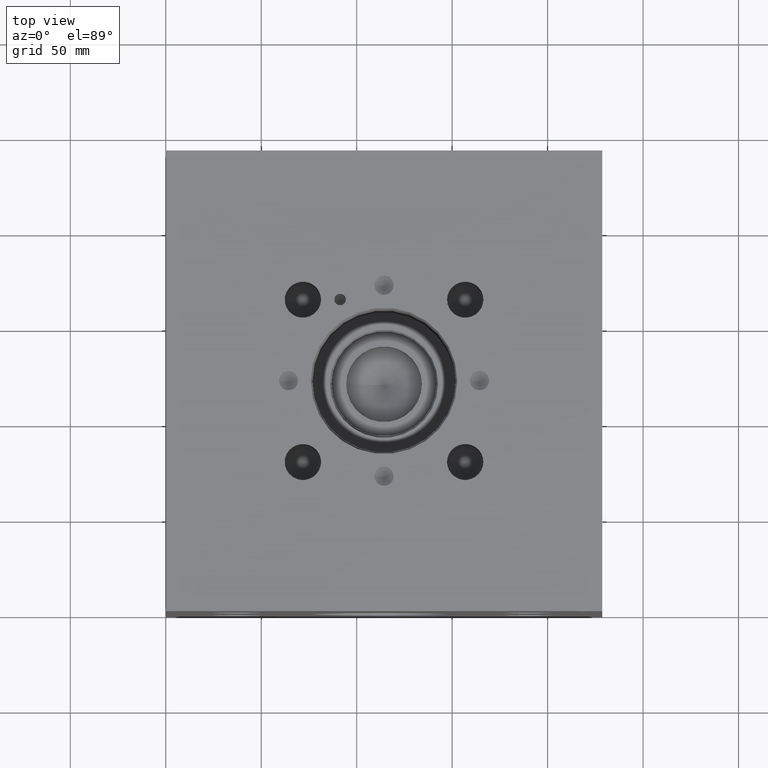
[diagram: clean part render]
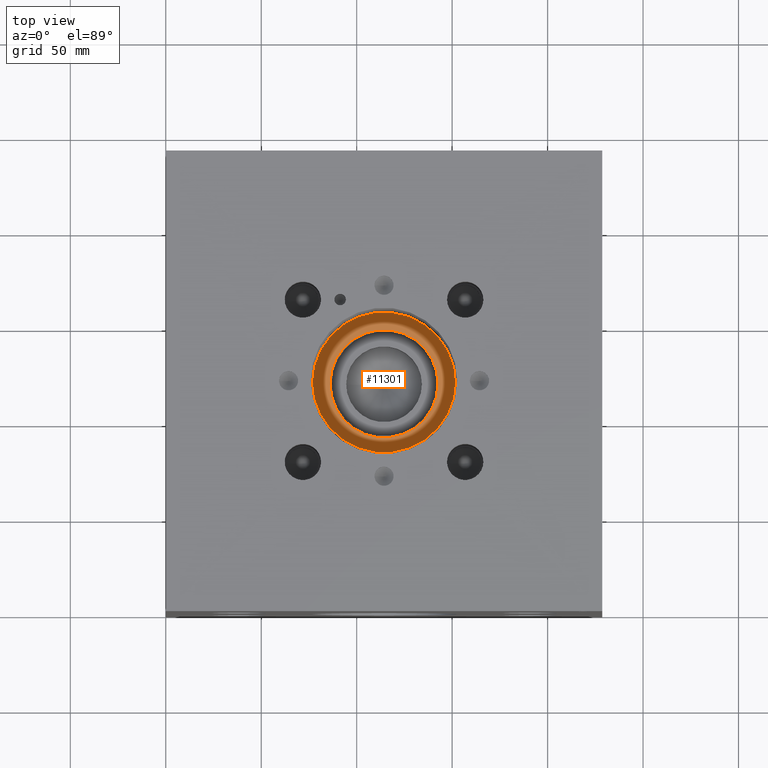
[diagram: same view with one face highlighted and labeled with its STEP entity id]
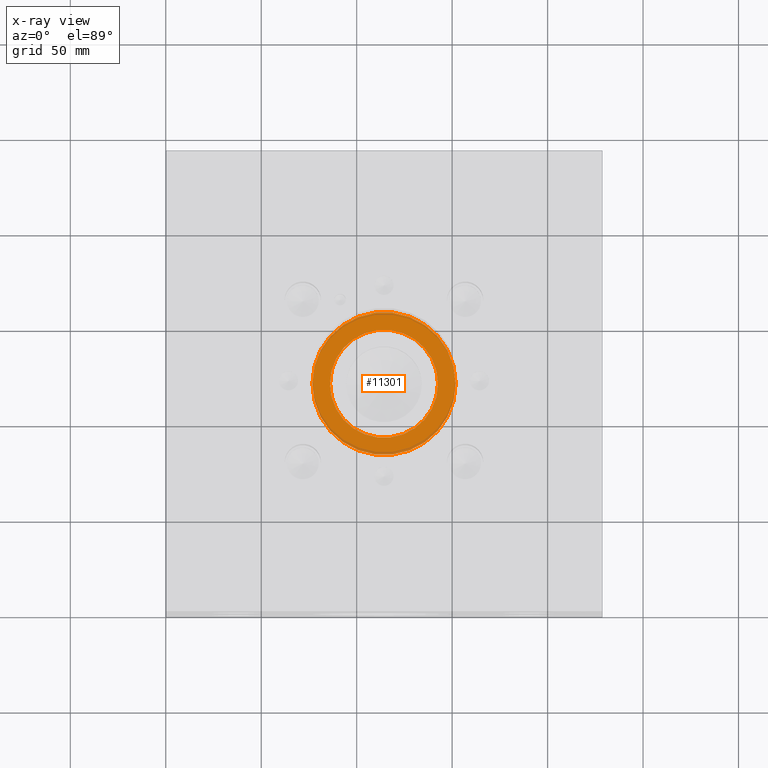
[diagram: x-ray of the same camera — body ghosted, the highlighted face saturated]
A machine part, top view. The second image highlights one B-rep face of the part: STEP entity #11301.
The next image is the same camera in x-ray: the body ghosted, the highlighted face saturated — about 6% of this face is hidden behind the body in this view.
In plain terms, the highlighted planar face has unit normal (0, 0, -1).
Its self-contained STEP definition (entity closure, byte-faithful):
#386=CIRCLE('',#12047,37.5031);
#387=CIRCLE('',#12048,37.5031);
#388=CIRCLE('',#12050,28.3083);
#389=CIRCLE('',#12051,28.3083);
#774=FACE_BOUND('',#2012,.T.);
#1355=FACE_OUTER_BOUND('',#2011,.T.);
#2011=EDGE_LOOP('',(#9869,#9870));
#2012=EDGE_LOOP('',(#9871,#9872));
#5281=VERTEX_POINT('',#19168);
#5282=VERTEX_POINT('',#19170);
#5283=VERTEX_POINT('',#19174);
#5284=VERTEX_POINT('',#19175);
#6832=EDGE_CURVE('',#5281,#5282,#386,.T.);
#6833=EDGE_CURVE('',#5282,#5281,#387,.T.);
#6834=EDGE_CURVE('',#5283,#5284,#388,.T.);
#6835=EDGE_CURVE('',#5284,#5283,#389,.T.);
#9869=ORIENTED_EDGE('',*,*,#6833,.F.);
#9870=ORIENTED_EDGE('',*,*,#6832,.F.);
#9871=ORIENTED_EDGE('',*,*,#6834,.T.);
#9872=ORIENTED_EDGE('',*,*,#6835,.T.);
#10319=PLANE('',#12049);
#11301=ADVANCED_FACE('',(#1355,#774),#10319,.F.);
#12047=AXIS2_PLACEMENT_3D('',#19171,#14594,#14595);
#12048=AXIS2_PLACEMENT_3D('',#19172,#14596,#14597);
#12049=AXIS2_PLACEMENT_3D('',#19173,#14598,#14599);
#12050=AXIS2_PLACEMENT_3D('',#19176,#14600,#14601);
#12051=AXIS2_PLACEMENT_3D('',#19177,#14602,#14603);
#14594=DIRECTION('center_axis',(0.,0.,-1.));
#14595=DIRECTION('ref_axis',(1.,0.,0.));
#14596=DIRECTION('center_axis',(0.,0.,-1.));
#14597=DIRECTION('ref_axis',(1.,0.,0.));
#14598=DIRECTION('center_axis',(0.,0.,-1.));
#14599=DIRECTION('ref_axis',(-1.,0.,0.));
#14600=DIRECTION('center_axis',(0.,0.,-1.));
#14601=DIRECTION('ref_axis',(1.,0.,0.));
#14602=DIRECTION('center_axis',(0.,0.,-1.));
#14603=DIRECTION('ref_axis',(1.,0.,0.));
#19168=CARTESIAN_POINT('',(76.7969,120.65,103.505));
#19170=CARTESIAN_POINT('',(151.8031,120.65,103.505));
#19171=CARTESIAN_POINT('Origin',(114.3,120.65,103.505));
#19172=CARTESIAN_POINT('Origin',(114.3,120.65,103.505));
#19173=CARTESIAN_POINT('Origin',(142.6083,120.65,103.505));
#19174=CARTESIAN_POINT('',(142.6083,120.65,103.505));
#19175=CARTESIAN_POINT('',(85.9917,120.65,103.505));
#19176=CARTESIAN_POINT('Origin',(114.3,120.65,103.505));
#19177=CARTESIAN_POINT('Origin',(114.3,120.65,103.505));